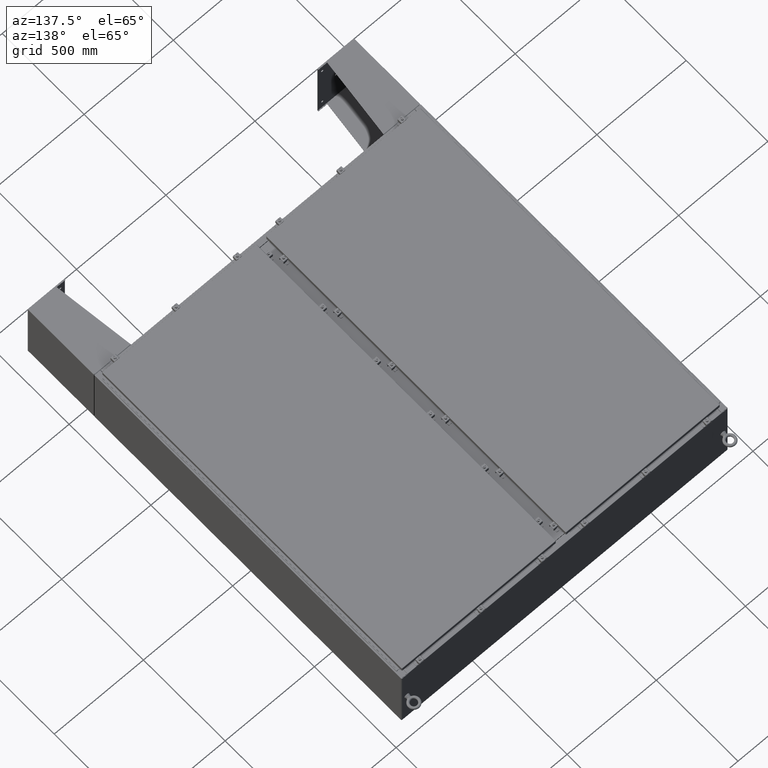
[diagram: clean part render]
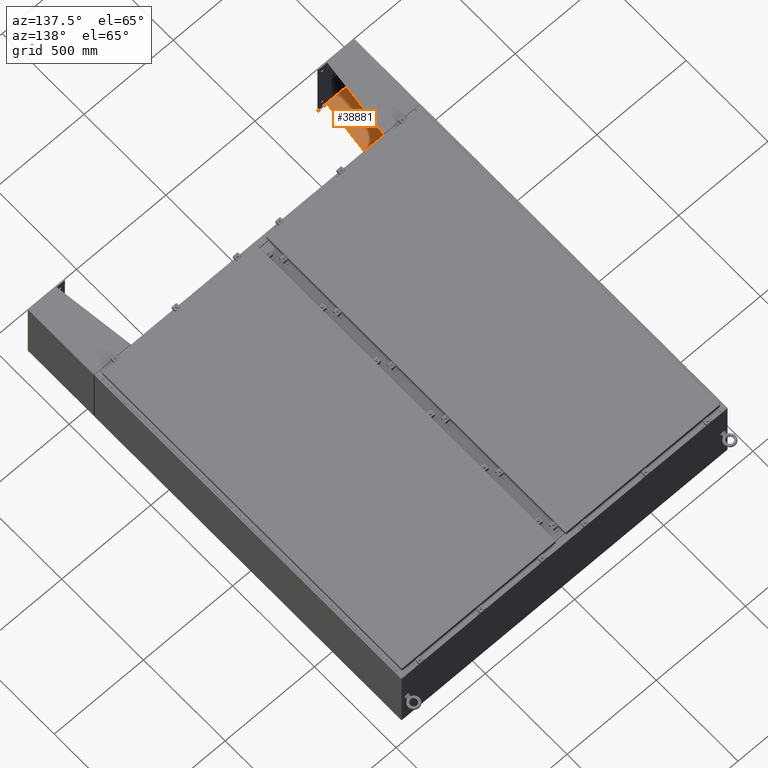
[diagram: same view with one face highlighted and labeled with its STEP entity id]
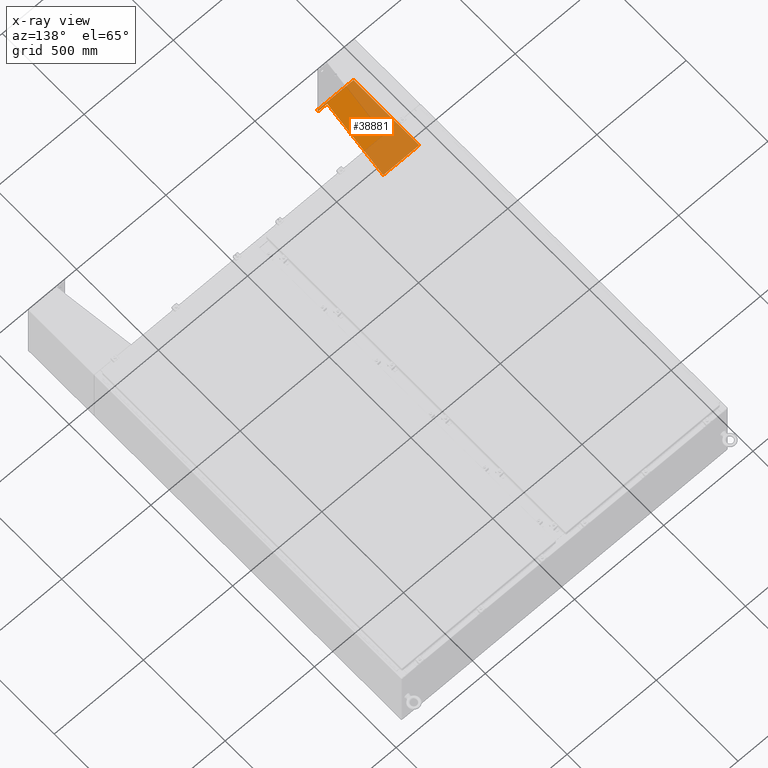
[diagram: x-ray of the same camera — body ghosted, the highlighted face saturated]
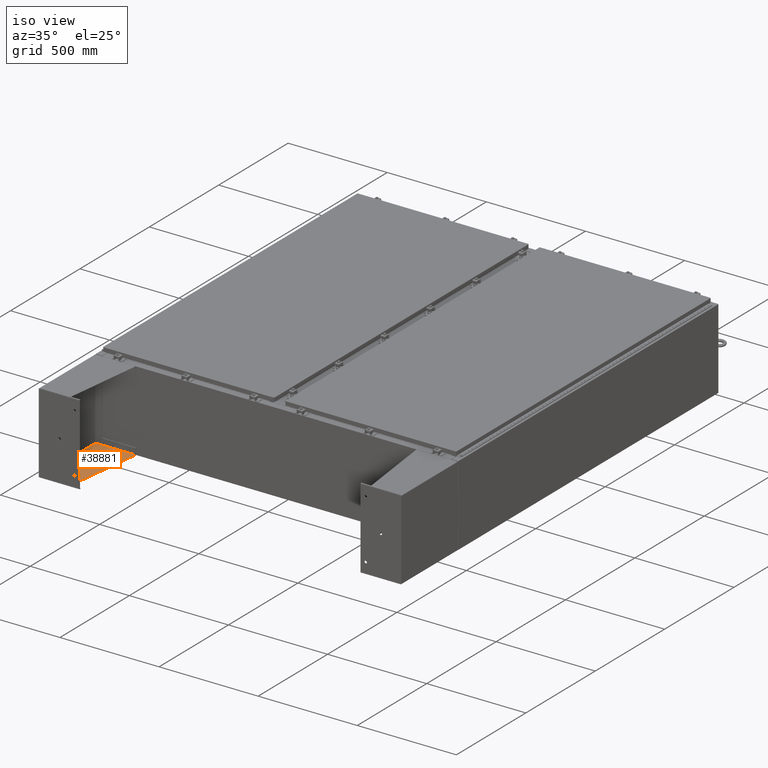
[diagram: same view with one face highlighted and labeled with its STEP entity id]
A machine part, auxiliary view. The second image highlights one B-rep face of the part: STEP entity #38881.
The next image is the same camera in x-ray: the body ghosted, the highlighted face saturated — about 59% of this face is hidden behind the body in this view.
A second angle (iso view) of the same face is appended — the face is thin or edge-on in the first view.
In plain terms, the highlighted planar face has unit normal (-0, -0, 1).
Its self-contained STEP definition (entity closure, byte-faithful):
#711 = CARTESIAN_POINT ( 'NONE',  ( 7.896000000000019400, -7.749999999999928900, 6.052216497445980900 ) ) ;
#1048 = VECTOR ( 'NONE', #60863, 39.37007874015748100 ) ;
#1056 = CARTESIAN_POINT ( 'NONE',  ( 7.896000000000027400, -7.749999999999928900, 8.001000000000056300 ) ) ;
#1850 = VECTOR ( 'NONE', #80361, 39.37007874015748100 ) ;
#3499 = VECTOR ( 'NONE', #58322, 39.37007874015748100 ) ;
#6873 = ORIENTED_EDGE ( 'NONE', *, *, #29208, .F. ) ;
#7421 = DIRECTION ( 'NONE',  ( -3.550958521948204300E-015, -1.724806627505603900E-032, -1.000000000000000000 ) ) ;
#15081 = CARTESIAN_POINT ( 'NONE',  ( 7.896000000000011500, -7.999999999999932500, 8.001000000000013700 ) ) ;
#16790 = LINE ( 'NONE', #35670, #1850 ) ;
#17547 = VECTOR ( 'NONE', #51236, 39.37007874015748100 ) ;
#18697 = CARTESIAN_POINT ( 'NONE',  ( 7.896000000000027400, -7.749999999999928900, 8.001000000000056300 ) ) ;
#19731 = ORIENTED_EDGE ( 'NONE', *, *, #38982, .F. ) ;
#21476 = LINE ( 'NONE', #711, #17547 ) ;
#23361 = VERTEX_POINT ( 'NONE', #77172 ) ;
#23706 = CARTESIAN_POINT ( 'NONE',  ( 7.896000000000012300, 7.857000000000064200, 0.03900000000001124800 ) ) ;
#25226 = CARTESIAN_POINT ( 'NONE',  ( 7.895999999999999000, 7.857000000000064200, 0.03900000000001124800 ) ) ;
#26482 = VERTEX_POINT ( 'NONE', #49293 ) ;
#27642 = CARTESIAN_POINT ( 'NONE',  ( 7.895999999999998100, -8.000000000000001800, 1.311287036958846300E-014 ) ) ;
#28877 = DIRECTION ( 'NONE',  ( -9.466330862652141700E-029, 1.198498701752819500E-031, 1.000000000000000000 ) ) ;
#29208 = EDGE_CURVE ( 'NONE', #23361, #79103, #16790, .T. ) ;
#30966 = CARTESIAN_POINT ( 'NONE',  ( 7.896000000000027400, 7.857000000000073000, 8.001000000000013700 ) ) ;
#31599 = FACE_OUTER_BOUND ( 'NONE', #70825, .T. ) ;
#34667 = LINE ( 'NONE', #41812, #1048 ) ;
#35670 = CARTESIAN_POINT ( 'NONE',  ( 7.895999999999998100, -8.000000000000001800, 0.03900000000001561900 ) ) ;
#38881 = ADVANCED_FACE ( 'NONE', ( #31599 ), #47846, .T. ) ;
#38982 = EDGE_CURVE ( 'NONE', #79103, #77909, #40408, .T. ) ;
#39365 = ORIENTED_EDGE ( 'NONE', *, *, #40798, .F. ) ;
#40408 = LINE ( 'NONE', #23706, #57116 ) ;
#40798 = EDGE_CURVE ( 'NONE', #59885, #23361, #70793, .T. ) ;
#41812 = CARTESIAN_POINT ( 'NONE',  ( 7.896000000000011500, -7.999999999999932500, 8.001000000000013700 ) ) ;
#44035 = DIRECTION ( 'NONE',  ( 3.550958521948204300E-015, 1.724806627505603900E-032, 1.000000000000000000 ) ) ;
#44058 = DIRECTION ( 'NONE',  ( -1.000000000000000000, -6.212279628615467300E-030, 3.550958521948204300E-015 ) ) ;
#45707 = EDGE_CURVE ( 'NONE', #26482, #77909, #21476, .T. ) ;
#45741 = CARTESIAN_POINT ( 'NONE',  ( 7.896000000000011500, -7.999999999999932500, 8.001000000000013700 ) ) ;
#47846 = PLANE ( 'NONE',  #80760 ) ;
#49293 = CARTESIAN_POINT ( 'NONE',  ( 7.896000000000019400, -7.749999999999928900, 6.052216497445980900 ) ) ;
#50293 = VECTOR ( 'NONE', #7421, 39.37007874015748100 ) ;
#51236 = DIRECTION ( 'NONE',  ( 4.399772607369686500E-016, 0.9922942345449394800, 0.1239038017531047900 ) ) ;
#52255 = LINE ( 'NONE', #1056, #50293 ) ;
#57116 = VECTOR ( 'NONE', #28877, 39.37007874015748100 ) ;
#58322 = DIRECTION ( 'NONE',  ( -3.550958521948204300E-015, -1.724806627505603900E-032, -1.000000000000000000 ) ) ;
#59885 = VERTEX_POINT ( 'NONE', #15081 ) ;
#60863 = DIRECTION ( 'NONE',  ( -0.0000000000000000000, -1.000000000000000000, -1.198498701752371100E-031 ) ) ;
#64833 = VERTEX_POINT ( 'NONE', #18697 ) ;
#70793 = LINE ( 'NONE', #27642, #3499 ) ;
#70825 = EDGE_LOOP ( 'NONE', ( #72373, #75935, #79839, #19731, #6873, #39365 ) ) ;
#72373 = ORIENTED_EDGE ( 'NONE', *, *, #81371, .F. ) ;
#75363 = EDGE_CURVE ( 'NONE', #64833, #26482, #52255, .T. ) ;
#75935 = ORIENTED_EDGE ( 'NONE', *, *, #75363, .T. ) ;
#77172 = CARTESIAN_POINT ( 'NONE',  ( 7.895999999999998100, -8.000000000000001800, 0.03900000000001561900 ) ) ;
#77909 = VERTEX_POINT ( 'NONE', #30966 ) ;
#79103 = VERTEX_POINT ( 'NONE', #25226 ) ;
#79839 = ORIENTED_EDGE ( 'NONE', *, *, #45707, .T. ) ;
#80361 = DIRECTION ( 'NONE',  ( 0.0000000000000000000, 1.000000000000000000, 1.198498701752371100E-031 ) ) ;
#80760 = AXIS2_PLACEMENT_3D ( 'NONE', #45741, #44058, #44035 ) ;
#81371 = EDGE_CURVE ( 'NONE', #64833, #59885, #34667, .T. ) ;